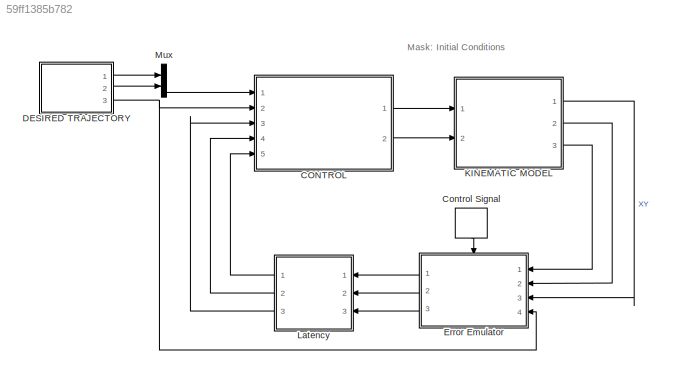
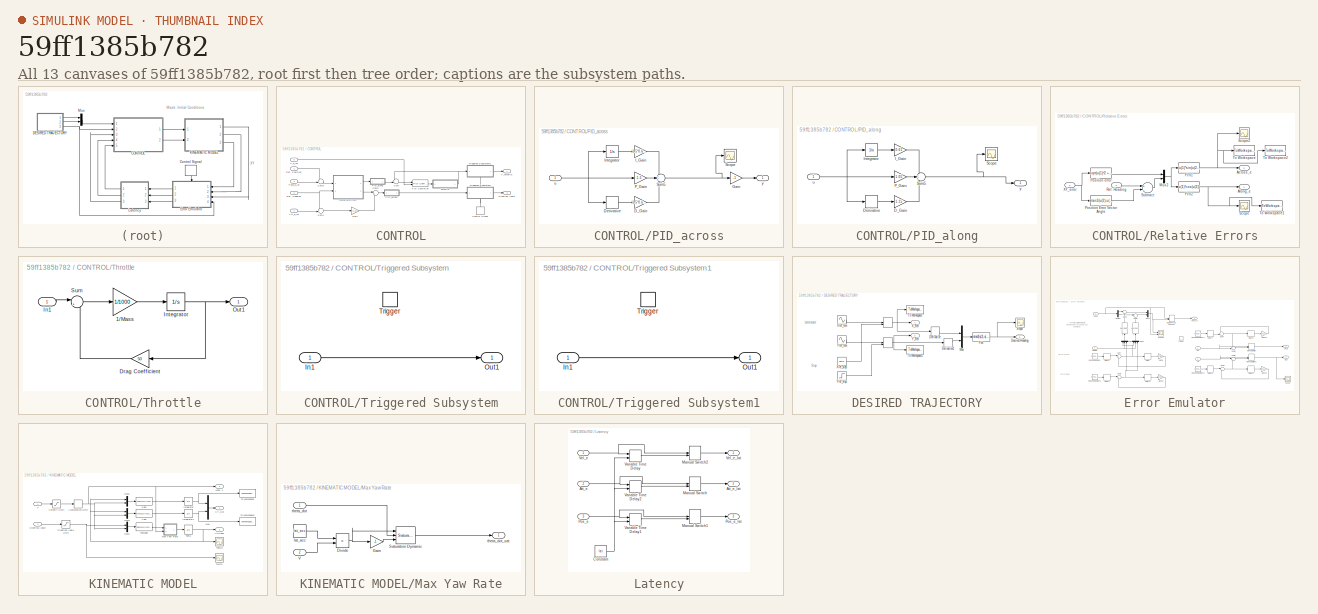
[diagram: thumbnail index - all 13 canvases of the model, root first then tree order]
MODEL slx_59ff1385b782
KIND model
CONFIG AbsTol = auto
CONFIG EnableMultiTasking = off
CONFIG FixedStep = 0.005
CONFIG MaxStep = auto
CONFIG MinStep = auto
CONFIG RelTol = 1e-3
CONFIG SampleTimeConstraint = Unconstrained
CONFIG Solver = FixedStepAuto
CONFIG SolverName = FixedStepAuto
CONFIG StartTime = 0.0
CONFIG StopFcn = Plots\n
CONFIG StopTime = t
BLOCK [SubSystem] CONTROL
  Ports = [5, 2]
  RequestExecContextInheritance = off
  Variant = off
BLOCK [Inport] CONTROL/Att_e_lat
  IconDisplay = Port number
  Port = 4
BLOCK [DiscretePulseGenerator] CONTROL/Control Signal
  Period = deltat
  Ports = [0, 1]
  PulseType = Time based
  PulseWidth = 50
BLOCK [Gain] CONTROL/Gain
  Gain = 0.01
  OutDataTypeStr = Inherit: Inherit via internal rule
  ParamDataTypeStr = Inherit: Inherit via internal rule
  SaturateOnIntegerOverflow = off
BLOCK [Reference] CONTROL/PID Controller  REF=simulink/Continuous/PID Controller
  Ports = [2, 1]
  SourceBlock = simulink/Continuous/PID Controller
  SourceType = PID 1dof
BLOCK [SubSystem] CONTROL/PID_across
  Ports = [1, 1]
  RequestExecContextInheritance = off
  Variant = off
BLOCK [Gain] CONTROL/PID_across/D_Gain
  Gain = 1.5*0.6*3/8
  OutDataTypeStr = Inherit: Inherit via internal rule
  ParamDataTypeStr = Inherit: Inherit via internal rule
  SaturateOnIntegerOverflow = off
BLOCK [Derivative] CONTROL/PID_across/Derivative
BLOCK [Gain] CONTROL/PID_across/Gain
  Gain = -1
  OutDataTypeStr = Inherit: Inherit via internal rule
  ParamDataTypeStr = Inherit: Inherit via internal rule
  SaturateOnIntegerOverflow = off
BLOCK [Gain] CONTROL/PID_across/I_Gain
  Gain = 1.5*0.6*2/1.9
  OutDataTypeStr = Inherit: Inherit via internal rule
  ParamDataTypeStr = Inherit: Inherit via internal rule
  SaturateOnIntegerOverflow = off
BLOCK [Integrator] CONTROL/PID_across/Integrator
  Ports = [1, 1]
  WrapState = on
  WrappedStateLowerValue = -pi/10
  WrappedStateUpperValue = pi/10
BLOCK [Gain] CONTROL/PID_across/P_Gain
  Gain = 1.5
  OutDataTypeStr = Inherit: Inherit via internal rule
  ParamDataTypeStr = Inherit: Inherit via internal rule
  SaturateOnIntegerOverflow = off
BLOCK [Scope] CONTROL/PID_across/Scope
  NumInputPorts = 1
  Ports = [1]
  ScopeSpecificationString = Simulink.scopes.TimeScopeBlockCfg('CurrentConfiguration', extmgr.ConfigurationSet(extmgr.Configuration('Core','General UI',true),extmgr.Configuration('Core','Source UI',true),extmgr.Configuration('Sources','WiredSimulink',true,'DataLoggingVariableName','ScopeData4'),extmgr.Configuration('Visuals','Time Domain',true,'SerializedDisplays',{struct('MinYLimReal','-82.08781','MaxYLimReal','74.78118','YL...<+1413ch>
BLOCK [Sum] CONTROL/PID_across/Sum5
  IconShape = round
  InputSameDT = off
  Inputs = +++
  OutDataTypeStr = Inherit: Inherit via internal rule
  Ports = [3, 1]
  SaturateOnIntegerOverflow = off
BLOCK [Inport] CONTROL/PID_across/u
  IconDisplay = Port number
BLOCK [Outport] CONTROL/PID_across/y
  IconDisplay = Port number
BLOCK [SubSystem] CONTROL/PID_along
  Ports = [1, 1]
  RequestExecContextInheritance = off
  Variant = off
BLOCK [Gain] CONTROL/PID_along/D_Gain
  Gain = 1.15
  OutDataTypeStr = Inherit: Inherit via internal rule
  ParamDataTypeStr = Inherit: Inherit via internal rule
  SaturateOnIntegerOverflow = off
BLOCK [Derivative] CONTROL/PID_along/Derivative
BLOCK [Gain] CONTROL/PID_along/I_Gain
  Gain = 0.01
  OutDataTypeStr = Inherit: Inherit via internal rule
  ParamDataTypeStr = Inherit: Inherit via internal rule
  SaturateOnIntegerOverflow = off
BLOCK [Integrator] CONTROL/PID_along/Integrator
  Ports = [1, 1]
BLOCK [Gain] CONTROL/PID_along/P_Gain
  Gain = 1.05
  OutDataTypeStr = Inherit: Inherit via internal rule
  ParamDataTypeStr = Inherit: Inherit via internal rule
  SaturateOnIntegerOverflow = off
BLOCK [Scope] CONTROL/PID_along/Scope
  NumInputPorts = 1
  Ports = [1]
  ScopeSpecificationString = Simulink.scopes.TimeScopeBlockCfg('CurrentConfiguration', extmgr.ConfigurationSet(extmgr.Configuration('Core','General UI',true),extmgr.Configuration('Core','Source UI',true),extmgr.Configuration('Sources','WiredSimulink',true,'DataLoggingVariableName','ScopeData4'),extmgr.Configuration('Visuals','Time Domain',true,'SerializedDisplays',{struct('MinYLimReal','-58.12','MaxYLimReal','523.05327','YLab...<+1386ch>
BLOCK [Sum] CONTROL/PID_along/Sum5
  IconShape = round
  InputSameDT = off
  Inputs = +++
  OutDataTypeStr = Inherit: Inherit via internal rule
  Ports = [3, 1]
  SaturateOnIntegerOverflow = off
BLOCK [Inport] CONTROL/PID_along/u
  IconDisplay = Port number
BLOCK [Outport] CONTROL/PID_along/y
  IconDisplay = Port number
BLOCK [Inport] CONTROL/Pose_e_lat
  IconDisplay = Port number
  Port = 3
BLOCK [Inport] CONTROL/Ref. Heading
  IconDisplay = Port number
  Port = 2
BLOCK [Inport] CONTROL/Ref. Position
  IconDisplay = Port number
BLOCK [SubSystem] CONTROL/Relative Errors
  Ports = [2, 2]
  RequestExecContextInheritance = off
  Variant = off
BLOCK [Outport] CONTROL/Relative Errors/Across_e
  IconDisplay = Port number
  Port = 2
BLOCK [Outport] CONTROL/Relative Errors/Along_e
  IconDisplay = Port number
BLOCK [Fcn] CONTROL/Relative Errors/Fcn1
  Expr = (u(1)*sin(u(2)))
BLOCK [Fcn] CONTROL/Relative Errors/Fcn2
  Expr = u(1)*cos(u(2))
BLOCK [Mux] CONTROL/Relative Errors/Mux2
  DisplayOption = bar
  Inputs = 2
  Ports = [2, 1]
BLOCK [Fcn] CONTROL/Relative Errors/Position Error Vector Angle
  Expr = atan2(u(2),u(1))
BLOCK [Fcn] CONTROL/Relative Errors/Position error
  Expr = sqrt(u(1)^2 + u(2)^2)
BLOCK [Inport] CONTROL/Relative Errors/Ref. Heading
  IconDisplay = Port number
  Port = 2
BLOCK [Scope] CONTROL/Relative Errors/Scope
  NumInputPorts = 1
  Ports = [1]
  ScopeSpecificationString = Simulink.scopes.TimeScopeBlockCfg('CurrentConfiguration', extmgr.ConfigurationSet(extmgr.Configuration('Core','General UI',true),extmgr.Configuration('Core','Source UI',true),extmgr.Configuration('Sources','WiredSimulink',true,'DataLoggingVariableName','ScopeData1'),extmgr.Configuration('Visuals','Time Domain',true,'SerializedDisplays',{struct('MinYLimReal','-10.28283','MaxYLimReal','8.76209','YLa...<+1415ch>
BLOCK [Scope] CONTROL/Relative Errors/Scope2
  NumInputPorts = 1
  Ports = [1]
  ScopeSpecificationString = Simulink.scopes.TimeScopeBlockCfg('CurrentConfiguration', extmgr.ConfigurationSet(extmgr.Configuration('Core','General UI',true),extmgr.Configuration('Core','Source UI',true),extmgr.Configuration('Sources','WiredSimulink',true,'DataLoggingVariableName','ScopeData3'),extmgr.Configuration('Visuals','Time Domain',true,'SerializedDisplays',{struct('MinYLimReal','-8.9172','MaxYLimReal','7.80895','YLabe...<+1432ch>
BLOCK [Sum] CONTROL/Relative Errors/Subtract
  InputSameDT = off
  Inputs = +-
  OutDataTypeStr = Inherit: Inherit via internal rule
  Ports = [2, 1]
  SaturateOnIntegerOverflow = off
BLOCK [ToWorkspace] CONTROL/Relative Errors/To Workspace
  FixptAsFi = on
  MaxDataPoints = inf
  Ports = [1]
  SampleTime = -1
  Save2DSignal = 3-D array (concatenate along third dimension)
  SaveFormat = Timeseries
  VariableName = across
BLOCK [ToWorkspace] CONTROL/Relative Errors/To Workspace1
  FixptAsFi = on
  MaxDataPoints = inf
  Ports = [1]
  SampleTime = -1
  Save2DSignal = 2-D array (concatenate along first dimension)
  VariableName = alongrms
BLOCK [ToWorkspace] CONTROL/Relative Errors/To Workspace2
  FixptAsFi = on
  MaxDataPoints = inf
  Ports = [1]
  SampleTime = -1
  Save2DSignal = 2-D array (concatenate along first dimension)
  VariableName = acrossrms
BLOCK [Inport] CONTROL/Relative Errors/XY_error
  IconDisplay = Port number
BLOCK [Outport] CONTROL/Steering Angle
  IconDisplay = Port number
  Port = 2
BLOCK [Sum] CONTROL/Sum
  IconShape = round
  InputSameDT = off
  Inputs = -+|
  OutDataTypeStr = Inherit: Inherit via internal rule
  Ports = [2, 1]
  SaturateOnIntegerOverflow = off
BLOCK [Sum] CONTROL/Sum1
  IconShape = round
  InputSameDT = off
  Inputs = +-|
  OutDataTypeStr = Inherit: Inherit via internal rule
  Ports = [2, 1]
  SaturateOnIntegerOverflow = off
BLOCK [Sum] CONTROL/Sum2
  IconShape = round
  InputSameDT = off
  Inputs = |++
  OutDataTypeStr = Inherit: Inherit via internal rule
  Ports = [2, 1]
  SaturateOnIntegerOverflow = off
BLOCK [Sum] CONTROL/Sum3
  IconShape = round
  InputSameDT = off
  Inputs = +-|
  OutDataTypeStr = Inherit: Inherit via internal rule
  Ports = [2, 1]
  SaturateOnIntegerOverflow = off
BLOCK [SubSystem] CONTROL/Throttle
  Ports = [1, 1]
  RequestExecContextInheritance = off
  Variant = off
BLOCK [Gain] CONTROL/Throttle/1//Mass
  Gain = 1/1000
  OutDataTypeStr = Inherit: Inherit via internal rule
  ParamDataTypeStr = Inherit: Inherit via internal rule
  SaturateOnIntegerOverflow = off
BLOCK [Gain] CONTROL/Throttle/Drag Coefficient
  Gain = 50
  OutDataTypeStr = Inherit: Inherit via internal rule
  ParamDataTypeStr = Inherit: Inherit via internal rule
  SaturateOnIntegerOverflow = off
BLOCK [Inport] CONTROL/Throttle/In1
  IconDisplay = Port number
BLOCK [Integrator] CONTROL/Throttle/Integrator
  InitialCondition = 5
  Ports = [1, 1]
BLOCK [Outport] CONTROL/Throttle/Out1
  IconDisplay = Port number
BLOCK [Sum] CONTROL/Throttle/Sum
  IconShape = round
  InputSameDT = off
  Inputs = |+-
  OutDataTypeStr = Inherit: Inherit via internal rule
  Ports = [2, 1]
  SaturateOnIntegerOverflow = off
BLOCK [SubSystem] CONTROL/Triggered Subsystem
  Ports = [1, 1, 0, 1]
  RequestExecContextInheritance = off
  TreatAsAtomicUnit = on
  Variant = off
BLOCK [Inport] CONTROL/Triggered Subsystem/In1
  IconDisplay = Port number
BLOCK [Outport] CONTROL/Triggered Subsystem/Out1
  IconDisplay = Port number
BLOCK [TriggerPort] CONTROL/Triggered Subsystem/Trigger
  Ports = []
  StatesWhenEnabling = held
  VariantControl = Variant
BLOCK [SubSystem] CONTROL/Triggered Subsystem1
  Ports = [1, 1, 0, 1]
  RequestExecContextInheritance = off
  TreatAsAtomicUnit = on
  Variant = off
BLOCK [Inport] CONTROL/Triggered Subsystem1/In1
  IconDisplay = Port number
BLOCK [Outport] CONTROL/Triggered Subsystem1/Out1
  IconDisplay = Port number
BLOCK [TriggerPort] CONTROL/Triggered Subsystem1/Trigger
  Ports = []
  StatesWhenEnabling = held
  VariantControl = Variant
BLOCK [Outport] CONTROL/V_Throttle
  IconDisplay = Port number
BLOCK [Inport] CONTROL/V_e_lat
  IconDisplay = Port number
  Port = 5
BLOCK [DiscretePulseGenerator] Control Signal
  Period = deltat
  Ports = [0, 1]
  PulseType = Time based
  PulseWidth = 50
BLOCK [SubSystem] DESIRED TRAJECTORY
  Ports = [0, 3]
  RequestExecContextInheritance = off
  Variant = off
BLOCK [ManualSwitch] DESIRED TRAJECTORY/ 
BLOCK [ManualSwitch] DESIRED TRAJECTORY/  
BLOCK [Derivative] DESIRED TRAJECTORY/Derivative
BLOCK [Derivative] DESIRED TRAJECTORY/Derivative1
BLOCK [Outport] DESIRED TRAJECTORY/Desired Heading
  IconDisplay = Port number
  Port = 3
BLOCK [Fcn] DESIRED TRAJECTORY/Fcn
  Expr = atan2(u(2),u(1))
BLOCK [Mux] DESIRED TRAJECTORY/Mux
  DisplayOption = bar
  Inputs = 2
  Ports = [2, 1]
BLOCK [Scope] DESIRED TRAJECTORY/Scope
  NumInputPorts = 1
  Ports = [1]
  ScopeSpecificationString = Simulink.scopes.TimeScopeBlockCfg('CurrentConfiguration', extmgr.ConfigurationSet(extmgr.Configuration('Core','General UI',true),extmgr.Configuration('Core','Source UI',true),extmgr.Configuration('Sources','WiredSimulink',true,'DataLoggingVariableName','ScopeData1'),extmgr.Configuration('Visuals','Time Domain',true,'SerializedDisplays',{struct('MinYLimReal','0.45014','MaxYLimReal','0.79246','YLabe...<+1433ch>
BLOCK [ToWorkspace] DESIRED TRAJECTORY/To Workspace
  FixptAsFi = on
  MaxDataPoints = inf
  Ports = [1]
  SampleTime = -1
  Save2DSignal = 3-D array (concatenate along third dimension)
  SaveFormat = Timeseries
  VariableName = x_ref
BLOCK [ToWorkspace] DESIRED TRAJECTORY/To Workspace1
  FixptAsFi = on
  MaxDataPoints = inf
  Ports = [1]
  SampleTime = -1
  Save2DSignal = 3-D array (concatenate along third dimension)
  SaveFormat = Timeseries
  VariableName = y_ref
BLOCK [Outport] DESIRED TRAJECTORY/X_Ref
  IconDisplay = Port number
BLOCK [Sin] DESIRED TRAJECTORY/Xref_lem
  Amplitude = n*A
  Frequency = 2*pi/t
  Ports = [0, 1]
  SampleTime = 0
BLOCK [Reference] DESIRED TRAJECTORY/Xref_step  REF=simulink/Sources/Ramp
  Ports = [0, 1]
  SourceBlock = simulink/Sources/Ramp
  SourceType = Ramp
BLOCK [Outport] DESIRED TRAJECTORY/Y_Ref
  IconDisplay = Port number
  Port = 2
BLOCK [Sin] DESIRED TRAJECTORY/Yref_lem
  Amplitude = A
  Frequency = 4*pi/t
  Ports = [0, 1]
  SampleTime = 0
BLOCK [Step] DESIRED TRAJECTORY/Yref_step
  After = 5
  SampleTime = 0
  Time = 50
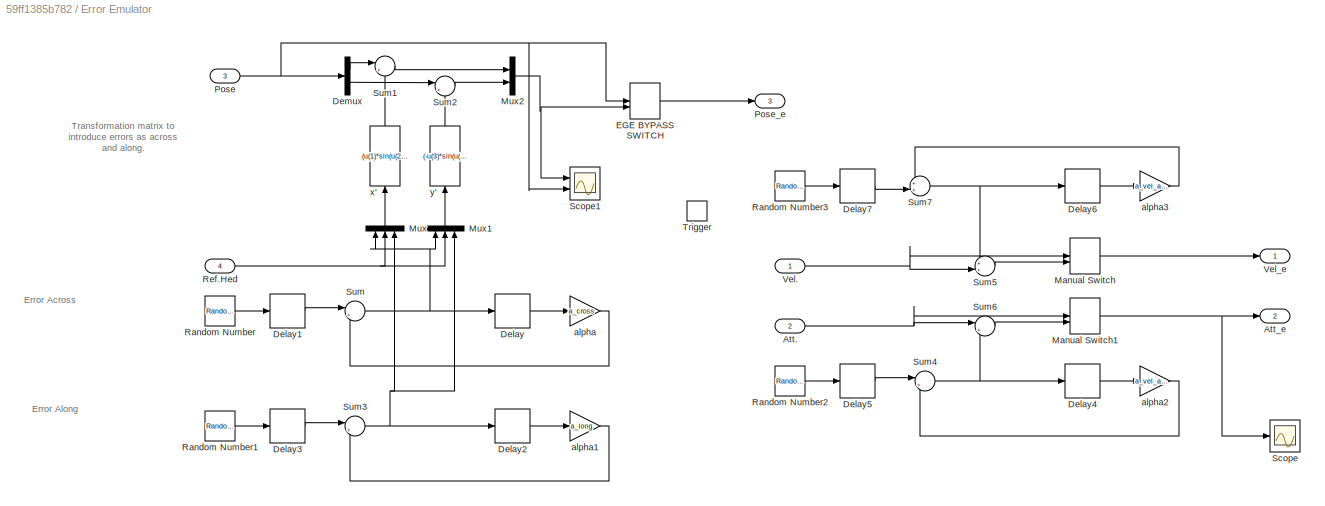
BLOCK [SubSystem] Error Emulator
  Ports = [4, 3, 0, 1]
  RequestExecContextInheritance = off
  Variant = off
BLOCK [Inport] Error Emulator/Att.
  IconDisplay = Port number
  Port = 2
BLOCK [Outport] Error Emulator/Att_e
  IconDisplay = Port number
  Port = 2
BLOCK [Delay] Error Emulator/Delay
  DelayLength = 1
  InitialCondition = 0
  InputPortMap = u0
  Ports = [1, 1]
BLOCK [Delay] Error Emulator/Delay1
  DelayLength = 1
  InitialCondition = 0
  InputPortMap = u0
  Ports = [1, 1]
BLOCK [Delay] Error Emulator/Delay2
  DelayLength = 1
  InitialCondition = 0
  InputPortMap = u0
  Ports = [1, 1]
BLOCK [Delay] Error Emulator/Delay3
  DelayLength = 1
  InitialCondition = 0
  InputPortMap = u0
  Ports = [1, 1]
BLOCK [Delay] Error Emulator/Delay4
  DelayLength = 1
  InitialCondition = 0
  InputPortMap = u0
  Ports = [1, 1]
BLOCK [Delay] Error Emulator/Delay5
  DelayLength = 1
  InitialCondition = 0
  InputPortMap = u0
  Ports = [1, 1]
BLOCK [Delay] Error Emulator/Delay6
  DelayLength = 1
  InitialCondition = 0
  InputPortMap = u0
  Ports = [1, 1]
BLOCK [Delay] Error Emulator/Delay7
  DelayLength = 1
  InitialCondition = 0
  InputPortMap = u0
  Ports = [1, 1]
BLOCK [Demux] Error Emulator/Demux
  DisplayOption = bar
  Outputs = 2
  Ports = [1, 2]
BLOCK [ManualSwitch] Error Emulator/EGE BYPASS SWITCH
  CurrentSetting = 0
BLOCK [ManualSwitch] Error Emulator/Manual Switch
  CurrentSetting = 0
BLOCK [ManualSwitch] Error Emulator/Manual Switch1
  CurrentSetting = 0
BLOCK [Mux] Error Emulator/Mux
  DisplayOption = bar
  Inputs = 3
  Ports = [3, 1]
BLOCK [Mux] Error Emulator/Mux1
  DisplayOption = bar
  Inputs = 3
  Ports = [3, 1]
BLOCK [Mux] Error Emulator/Mux2
  DisplayOption = bar
  Inputs = 2
  Ports = [2, 1]
BLOCK [Inport] Error Emulator/Pose
  IconDisplay = Port number
  Port = 3
BLOCK [Outport] Error Emulator/Pose_e
  IconDisplay = Port number
  Port = 3
BLOCK [RandomNumber] Error Emulator/Random Number
  Variance = s_cross^2
BLOCK [RandomNumber] Error Emulator/Random Number1
  Variance = s_long^2
BLOCK [RandomNumber] Error Emulator/Random Number2
  Variance = s_att^2
BLOCK [RandomNumber] Error Emulator/Random Number3
  Variance = s_vel^2
BLOCK [Inport] Error Emulator/Ref.Hed 
  IconDisplay = Port number
  Port = 4
BLOCK [Scope] Error Emulator/Scope
  NumInputPorts = 1
  Ports = [1]
  ScopeSpecificationString = Simulink.scopes.TimeScopeBlockCfg('CurrentConfiguration', extmgr.ConfigurationSet(extmgr.Configuration('Core','General UI',true),extmgr.Configuration('Core','Source UI',true),extmgr.Configuration('Sources','WiredSimulink',true,'DataLoggingVariableName','ScopeData1'),extmgr.Configuration('Visuals','Time Domain',true,'SerializedDisplays',{struct('MinYLimReal','-34.29249','MaxYLimReal','-22.55754','Y...<+1400ch>
BLOCK [Scope] Error Emulator/Scope1
  NumInputPorts = 2
  Ports = [2]
  ScopeSpecificationString = Simulink.scopes.TimeScopeBlockCfg('CurrentConfiguration', extmgr.ConfigurationSet(extmgr.Configuration('Core','General UI',true),extmgr.Configuration('Core','Source UI',true),extmgr.Configuration('Sources','WiredSimulink',true,'DataLoggingVariableName','ScopeData3'),extmgr.Configuration('Visuals','Time Domain',true,'SerializedDisplays',{struct('MinYLimReal','-803.86448','MaxYLimReal','1744.12132',...<+1477ch>
BLOCK [Sum] Error Emulator/Sum
  IconShape = round
  InputSameDT = off
  Inputs = |++
  OutDataTypeStr = Inherit: Inherit via internal rule
  Ports = [2, 1]
  SaturateOnIntegerOverflow = off
BLOCK [Sum] Error Emulator/Sum1
  IconShape = round
  InputSameDT = off
  Inputs = |+-
  OutDataTypeStr = Inherit: Inherit via internal rule
  Ports = [2, 1]
  SaturateOnIntegerOverflow = off
BLOCK [Sum] Error Emulator/Sum2
  IconShape = round
  InputSameDT = off
  Inputs = |++
  OutDataTypeStr = Inherit: Inherit via internal rule
  Ports = [2, 1]
  SaturateOnIntegerOverflow = off
BLOCK [Sum] Error Emulator/Sum3
  IconShape = round
  InputSameDT = off
  Inputs = |++
  OutDataTypeStr = Inherit: Inherit via internal rule
  Ports = [2, 1]
  SaturateOnIntegerOverflow = off
BLOCK [Sum] Error Emulator/Sum4
  IconShape = round
  InputSameDT = off
  Inputs = |++
  OutDataTypeStr = Inherit: Inherit via internal rule
  Ports = [2, 1]
  SaturateOnIntegerOverflow = off
BLOCK [Sum] Error Emulator/Sum5
  IconShape = round
  InputSameDT = off
  Inputs = ++|
  OutDataTypeStr = Inherit: Inherit via internal rule
  Ports = [2, 1]
  SaturateOnIntegerOverflow = off
BLOCK [Sum] Error Emulator/Sum6
  IconShape = round
  InputSameDT = off
  Inputs = |++
  OutDataTypeStr = Inherit: Inherit via internal rule
  Ports = [2, 1]
  SaturateOnIntegerOverflow = off
BLOCK [Sum] Error Emulator/Sum7
  IconShape = round
  InputSameDT = off
  Inputs = ++|
  OutDataTypeStr = Inherit: Inherit via internal rule
  Ports = [2, 1]
  SaturateOnIntegerOverflow = off
BLOCK [TriggerPort] Error Emulator/Trigger
  PortDimensions = 1
  Ports = []
  StatesWhenEnabling = held
  VariantControl = Variant
BLOCK [Inport] Error Emulator/Vel.
  IconDisplay = Port number
BLOCK [Outport] Error Emulator/Vel_e
  IconDisplay = Port number
BLOCK [Gain] Error Emulator/alpha
  Gain = a_cross
  OutDataTypeStr = Inherit: Inherit via internal rule
  ParamDataTypeStr = Inherit: Inherit via internal rule
  SaturateOnIntegerOverflow = off
BLOCK [Gain] Error Emulator/alpha1
  Gain = a_long
  OutDataTypeStr = Inherit: Inherit via internal rule
  ParamDataTypeStr = Inherit: Inherit via internal rule
  SaturateOnIntegerOverflow = off
BLOCK [Gain] Error Emulator/alpha2
  Gain = a_vel_att
  OutDataTypeStr = Inherit: Inherit via internal rule
  ParamDataTypeStr = Inherit: Inherit via internal rule
  SaturateOnIntegerOverflow = off
BLOCK [Gain] Error Emulator/alpha3
  Gain = a_vel_att
  OutDataTypeStr = Inherit: Inherit via internal rule
  ParamDataTypeStr = Inherit: Inherit via internal rule
  SaturateOnIntegerOverflow = off
BLOCK [Fcn] Error Emulator/x'
  Expr = (u(1)*sin(u(2))+u(3)*cos(u(2)))
BLOCK [Fcn] Error Emulator/y'
  Expr = (-u(3)*sin(u(2))+u(1)*cos(u(2)))
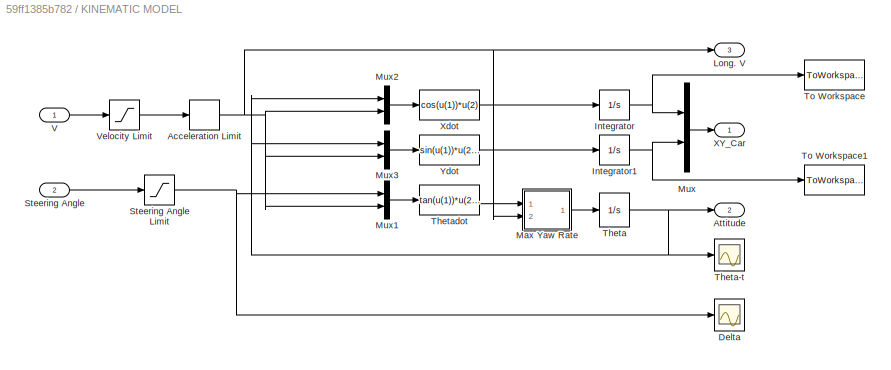
BLOCK [SubSystem] KINEMATIC MODEL
  Ports = [2, 3]
  RequestExecContextInheritance = off
  Variant = off
BLOCK [RateLimiter] KINEMATIC MODEL/Acceleration Limit
  FallingSlewLimit = -3
  RisingSlewLimit = 3
  SampleTimeMode = inherited
BLOCK [Outport] KINEMATIC MODEL/Attitude
  IconDisplay = Port number
  Port = 2
BLOCK [Scope] KINEMATIC MODEL/Delta
  NumInputPorts = 1
  Ports = [1]
  ScopeSpecificationString = Simulink.scopes.TimeScopeBlockCfg('CurrentConfiguration', extmgr.ConfigurationSet(extmgr.Configuration('Core','General UI',true),extmgr.Configuration('Core','Source UI',true),extmgr.Configuration('Sources','WiredSimulink',true,'DataLoggingVariableName','ScopeData3'),extmgr.Configuration('Visuals','Time Domain',true,'SerializedDisplays',{struct('MinYLimReal','-0.98175','MaxYLimReal','0.98175','YLab...<+1451ch>
BLOCK [Integrator] KINEMATIC MODEL/Integrator
  InitialCondition = x0
  Ports = [1, 1]
BLOCK [Integrator] KINEMATIC MODEL/Integrator1
  InitialCondition = y0
  Ports = [1, 1]
BLOCK [Outport] KINEMATIC MODEL/Long. V
  IconDisplay = Port number
  Port = 3
BLOCK [SubSystem] KINEMATIC MODEL/Max Yaw Rate
  Ports = [2, 1]
  RequestExecContextInheritance = off
  Variant = off
BLOCK [Product] KINEMATIC MODEL/Max Yaw Rate/Divide
  InputSameDT = off
  Inputs = */
  OutDataTypeStr = Inherit: Inherit via internal rule
  Ports = [2, 1]
  RndMeth = Floor
  SaturateOnIntegerOverflow = off
BLOCK [Gain] KINEMATIC MODEL/Max Yaw Rate/Gain
  Gain = -1
  OutDataTypeStr = Inherit: Inherit via internal rule
  ParamDataTypeStr = Inherit: Inherit via internal rule
  SaturateOnIntegerOverflow = off
BLOCK [Reference] KINEMATIC MODEL/Max Yaw Rate/Saturation Dynamic  REF=simulink/Discontinuities/Saturation
Dynamic
  Ports = [3, 1]
  SourceBlock = simulink/Discontinuities/Saturation\nDynamic
  SourceType = Saturation Dynamic
BLOCK [Inport] KINEMATIC MODEL/Max Yaw Rate/V
  IconDisplay = Port number
  Port = 2
BLOCK [Constant] KINEMATIC MODEL/Max Yaw Rate/lat_acc
  Value = lat_acc
BLOCK [Inport] KINEMATIC MODEL/Max Yaw Rate/theta_dot
  IconDisplay = Port number
BLOCK [Outport] KINEMATIC MODEL/Max Yaw Rate/theta_dot_sat
  IconDisplay = Port number
BLOCK [Mux] KINEMATIC MODEL/Mux
  DisplayOption = bar
  Inputs = 2
  Ports = [2, 1]
BLOCK [Mux] KINEMATIC MODEL/Mux1
  DisplayOption = bar
  Inputs = 2
  Ports = [2, 1]
BLOCK [Mux] KINEMATIC MODEL/Mux2
  DisplayOption = bar
  Inputs = 2
  Ports = [2, 1]
BLOCK [Mux] KINEMATIC MODEL/Mux3
  DisplayOption = bar
  Inputs = 2
  Ports = [2, 1]
BLOCK [Inport] KINEMATIC MODEL/Steering Angle
  IconDisplay = Port number
  Port = 2
BLOCK [Saturate] KINEMATIC MODEL/Steering Angle Limit
  InputPortMap = u0
  LowerLimit = -pi/4
  Ports = [1, 1]
  UpperLimit = pi/4
BLOCK [Integrator] KINEMATIC MODEL/Theta
  InitialCondition = ref
  Ports = [1, 1]
BLOCK [Scope] KINEMATIC MODEL/Theta-t
  NumInputPorts = 1
  Ports = [1]
  ScopeSpecificationString = Simulink.scopes.TimeScopeBlockCfg('CurrentConfiguration', extmgr.ConfigurationSet(extmgr.Configuration('Core','General UI',true),extmgr.Configuration('Core','Source UI',true),extmgr.Configuration('Sources','WiredSimulink',true,'DataLoggingVariableName','ScopeData6'),extmgr.Configuration('Visuals','Time Domain',true,'SerializedDisplays',{struct('MinYLimReal','-0.30194','MaxYLimReal','0.33125','YLab...<+1461ch>
BLOCK [Fcn] KINEMATIC MODEL/Thetadot
  Expr = tan(u(1))*u(2)/2
BLOCK [ToWorkspace] KINEMATIC MODEL/To Workspace
  FixptAsFi = on
  MaxDataPoints = inf
  Ports = [1]
  SampleTime = -1
  Save2DSignal = 3-D array (concatenate along third dimension)
  SaveFormat = Timeseries
  VariableName = x_car
BLOCK [ToWorkspace] KINEMATIC MODEL/To Workspace1
  FixptAsFi = on
  MaxDataPoints = inf
  Ports = [1]
  SampleTime = -1
  Save2DSignal = 3-D array (concatenate along third dimension)
  SaveFormat = Timeseries
  VariableName = y_car
BLOCK [Inport] KINEMATIC MODEL/V
  IconDisplay = Port number
BLOCK [Saturate] KINEMATIC MODEL/Velocity Limit
  InputPortMap = u0
  LowerLimit = 0
  Ports = [1, 1]
  UpperLimit = 25
BLOCK [Outport] KINEMATIC MODEL/XY_Car
  IconDisplay = Port number
BLOCK [Fcn] KINEMATIC MODEL/Xdot
  Expr = cos(u(1))*u(2)
BLOCK [Fcn] KINEMATIC MODEL/Ydot
  Expr = sin(u(1))*u(2)*1
BLOCK [SubSystem] Latency
  Ports = [3, 3]
  RequestExecContextInheritance = off
  Variant = off
BLOCK [Inport] Latency/Att_e
  IconDisplay = Port number
  Port = 2
BLOCK [Outport] Latency/Att_e_lat
  IconDisplay = Port number
  Port = 2
BLOCK [Constant] Latency/Constant
  Value = lat
BLOCK [ManualSwitch] Latency/Manual Switch
  CurrentSetting = 0
BLOCK [ManualSwitch] Latency/Manual Switch1
  CurrentSetting = 0
BLOCK [ManualSwitch] Latency/Manual Switch2
  CurrentSetting = 0
BLOCK [Inport] Latency/Pos_e
  IconDisplay = Port number
  Port = 3
BLOCK [Outport] Latency/Pos_e_lat
  IconDisplay = Port number
  Port = 3
BLOCK [VariableTransportDelay] Latency/Variable Time Delay
  MaximumDelay = 20
  Ports = [2, 1]
  ZeroDelay = on
BLOCK [VariableTransportDelay] Latency/Variable Time Delay1
  MaximumDelay = 20
  Ports = [2, 1]
  ZeroDelay = on
BLOCK [VariableTransportDelay] Latency/Variable Time Delay2
  MaximumDelay = 20
  Ports = [2, 1]
  ZeroDelay = on
BLOCK [Inport] Latency/Vel_e
  IconDisplay = Port number
BLOCK [Outport] Latency/Vel_e_lat
  IconDisplay = Port number
BLOCK [Mux] Mux
  DisplayOption = bar
  Inputs = 2
  Ports = [2, 1]
ANNOTATION (root): Mask: Initial Conditions
ANNOTATION DESIRED TRAJECTORY: Lemniscate
ANNOTATION DESIRED TRAJECTORY: Step
ANNOTATION Error Emulator: Error Across
ANNOTATION Error Emulator: Error Along
ANNOTATION Error Emulator: Transformation matrix to introduce errors as across and along.
LINE CONTROL/Att_e_lat:1 -> CONTROL/Sum1:2
NET CONTROL/Control Signal:1 -> CONTROL/Triggered Subsystem1:trigger, CONTROL/Triggered Subsystem:trigger
LINE CONTROL/Gain:1 -> CONTROL/Sum2:2
LINE CONTROL/PID Controller:1 -> CONTROL/Throttle:1
LINE CONTROL/PID_across/D_Gain:1 -> CONTROL/PID_across/Sum5:3
LINE CONTROL/PID_across/Derivative:1 -> CONTROL/PID_across/D_Gain:1
LINE CONTROL/PID_across/Gain:1 -> CONTROL/PID_across/y:1
LINE CONTROL/PID_across/I_Gain:1 -> CONTROL/PID_across/Sum5:1
LINE CONTROL/PID_across/Integrator:1 -> CONTROL/PID_across/I_Gain:1
LINE CONTROL/PID_across/P_Gain:1 -> CONTROL/PID_across/Sum5:2
NET CONTROL/PID_across/Sum5:1 -> CONTROL/PID_across/Gain:1, CONTROL/PID_across/Scope:1
NET CONTROL/PID_across/u:1 -> CONTROL/PID_across/Derivative:1, CONTROL/PID_across/Integrator:1, CONTROL/PID_across/P_Gain:1
LINE CONTROL/PID_across:1 -> CONTROL/Triggered Subsystem:1
LINE CONTROL/PID_along/D_Gain:1 -> CONTROL/PID_along/Sum5:3
LINE CONTROL/PID_along/Derivative:1 -> CONTROL/PID_along/D_Gain:1
LINE CONTROL/PID_along/I_Gain:1 -> CONTROL/PID_along/Sum5:1
LINE CONTROL/PID_along/Integrator:1 -> CONTROL/PID_along/I_Gain:1
LINE CONTROL/PID_along/P_Gain:1 -> CONTROL/PID_along/Sum5:2
NET CONTROL/PID_along/Sum5:1 -> CONTROL/PID_along/Scope:1, CONTROL/PID_along/y:1
NET CONTROL/PID_along/u:1 -> CONTROL/PID_along/Derivative:1, CONTROL/PID_along/Integrator:1, CONTROL/PID_along/P_Gain:1
LINE CONTROL/PID_along:1 -> CONTROL/Sum:2
LINE CONTROL/Pose_e_lat:1 -> CONTROL/Sum3:2
NET CONTROL/Ref. Heading:1 -> CONTROL/Relative Errors:2, CONTROL/Sum1:1
LINE CONTROL/Ref. Position:1 -> CONTROL/Sum3:1
NET CONTROL/Relative Errors/Fcn1:1 -> CONTROL/Relative Errors/Across_e:1, CONTROL/Relative Errors/Scope2:1, CONTROL/Relative Errors/To Workspace2:1, CONTROL/Relative Errors/To Workspace:1
NET CONTROL/Relative Errors/Fcn2:1 -> CONTROL/Relative Errors/Along_e:1, CONTROL/Relative Errors/Scope:1, CONTROL/Relative Errors/To Workspace1:1
NET CONTROL/Relative Errors/Mux2:1 -> CONTROL/Relative Errors/Fcn1:1, CONTROL/Relative Errors/Fcn2:1
LINE CONTROL/Relative Errors/Position Error Vector Angle:1 -> CONTROL/Relative Errors/Subtract:2
LINE CONTROL/Relative Errors/Position error:1 -> CONTROL/Relative Errors/Mux2:1
LINE CONTROL/Relative Errors/Ref. Heading:1 -> CONTROL/Relative Errors/Subtract:1
LINE CONTROL/Relative Errors/Subtract:1 -> CONTROL/Relative Errors/Mux2:2
NET CONTROL/Relative Errors/XY_error:1 -> CONTROL/Relative Errors/Position Error Vector Angle:1, CONTROL/Relative Errors/Position error:1
LINE CONTROL/Relative Errors:1 -> CONTROL/PID_along:1
LINE CONTROL/Relative Errors:2 -> CONTROL/Sum2:1
LINE CONTROL/Sum1:1 -> CONTROL/Gain:1
LINE CONTROL/Sum2:1 -> CONTROL/PID_across:1
LINE CONTROL/Sum3:1 -> CONTROL/Relative Errors:1
LINE CONTROL/Sum:1 -> CONTROL/PID Controller:1
LINE CONTROL/Throttle/1//Mass:1 -> CONTROL/Throttle/Integrator:1
LINE CONTROL/Throttle/Drag Coefficient:1 -> CONTROL/Throttle/Sum:2
LINE CONTROL/Throttle/In1:1 -> CONTROL/Throttle/Sum:1
NET CONTROL/Throttle/Integrator:1 -> CONTROL/Throttle/Drag Coefficient:1, CONTROL/Throttle/Out1:1
LINE CONTROL/Throttle/Sum:1 -> CONTROL/Throttle/1//Mass:1
NET CONTROL/Throttle:1 -> CONTROL/Sum:1, CONTROL/Triggered Subsystem1:1
LINE CONTROL/Triggered Subsystem/In1:1 -> CONTROL/Triggered Subsystem/Out1:1
LINE CONTROL/Triggered Subsystem1/In1:1 -> CONTROL/Triggered Subsystem1/Out1:1
LINE CONTROL/Triggered Subsystem1:1 -> CONTROL/V_Throttle:1
LINE CONTROL/Triggered Subsystem:1 -> CONTROL/Steering Angle:1
LINE CONTROL/V_e_lat:1 -> CONTROL/PID Controller:2
LINE CONTROL:1 -> KINEMATIC MODEL:1
LINE CONTROL:2 -> KINEMATIC MODEL:2
LINE Control Signal:1 -> Error Emulator:trigger
NET DESIRED TRAJECTORY/  :1 -> DESIRED TRAJECTORY/Derivative:1, DESIRED TRAJECTORY/To Workspace:1, DESIRED TRAJECTORY/X_Ref:1
NET DESIRED TRAJECTORY/ :1 -> DESIRED TRAJECTORY/Derivative1:1, DESIRED TRAJECTORY/To Workspace1:1, DESIRED TRAJECTORY/Y_Ref:1
LINE DESIRED TRAJECTORY/Derivative1:1 -> DESIRED TRAJECTORY/Mux:2
LINE DESIRED TRAJECTORY/Derivative:1 -> DESIRED TRAJECTORY/Mux:1
NET DESIRED TRAJECTORY/Fcn:1 -> DESIRED TRAJECTORY/Desired Heading:1, DESIRED TRAJECTORY/Scope:1
LINE DESIRED TRAJECTORY/Mux:1 -> DESIRED TRAJECTORY/Fcn:1
LINE DESIRED TRAJECTORY/Xref_lem:1 -> DESIRED TRAJECTORY/  :1
LINE DESIRED TRAJECTORY/Xref_step:1 -> DESIRED TRAJECTORY/  :2
LINE DESIRED TRAJECTORY/Yref_lem:1 -> DESIRED TRAJECTORY/ :1
LINE DESIRED TRAJECTORY/Yref_step:1 -> DESIRED TRAJECTORY/ :2
LINE DESIRED TRAJECTORY:1 -> Mux:1
LINE DESIRED TRAJECTORY:2 -> Mux:2
NET DESIRED TRAJECTORY:3 -> CONTROL:2, Error Emulator:4
NET Error Emulator/Att.:1 -> Error Emulator/Manual Switch1:1, Error Emulator/Sum6:1
LINE Error Emulator/Delay1:1 -> Error Emulator/Sum:1
LINE Error Emulator/Delay2:1 -> Error Emulator/alpha1:1
LINE Error Emulator/Delay3:1 -> Error Emulator/Sum3:1
LINE Error Emulator/Delay4:1 -> Error Emulator/alpha2:1
LINE Error Emulator/Delay5:1 -> Error Emulator/Sum4:1
LINE Error Emulator/Delay6:1 -> Error Emulator/alpha3:1
LINE Error Emulator/Delay7:1 -> Error Emulator/Sum7:2
LINE Error Emulator/Delay:1 -> Error Emulator/alpha:1
LINE Error Emulator/Demux:1 -> Error Emulator/Sum1:1
LINE Error Emulator/Demux:2 -> Error Emulator/Sum2:1
LINE Error Emulator/EGE BYPASS SWITCH:1 -> Error Emulator/Pose_e:1
NET Error Emulator/Manual Switch1:1 -> Error Emulator/Att_e:1, Error Emulator/Scope:1
LINE Error Emulator/Manual Switch:1 -> Error Emulator/Vel_e:1
LINE Error Emulator/Mux1:1 -> Error Emulator/y':1
NET Error Emulator/Mux2:1 -> Error Emulator/EGE BYPASS SWITCH:2, Error Emulator/Scope1:1
LINE Error Emulator/Mux:1 -> Error Emulator/x':1
NET Error Emulator/Pose:1 -> Error Emulator/Demux:1, Error Emulator/EGE BYPASS SWITCH:1, Error Emulator/Scope1:2
LINE Error Emulator/Random Number1:1 -> Error Emulator/Delay3:1
LINE Error Emulator/Random Number2:1 -> Error Emulator/Delay5:1
LINE Error Emulator/Random Number3:1 -> Error Emulator/Delay7:1
LINE Error Emulator/Random Number:1 -> Error Emulator/Delay1:1
NET Error Emulator/Ref.Hed :1 -> Error Emulator/Mux1:2, Error Emulator/Mux:2
LINE Error Emulator/Sum1:1 -> Error Emulator/Mux2:1
LINE Error Emulator/Sum2:1 -> Error Emulator/Mux2:2
NET Error Emulator/Sum3:1 -> Error Emulator/Delay2:1, Error Emulator/Mux1:3, Error Emulator/Mux:3
NET Error Emulator/Sum4:1 -> Error Emulator/Delay4:1, Error Emulator/Sum6:2
LINE Error Emulator/Sum5:1 -> Error Emulator/Manual Switch:2
LINE Error Emulator/Sum6:1 -> Error Emulator/Manual Switch1:2
NET Error Emulator/Sum7:1 -> Error Emulator/Delay6:1, Error Emulator/Sum5:1
NET Error Emulator/Sum:1 -> Error Emulator/Delay:1, Error Emulator/Mux1:1, Error Emulator/Mux:1
NET Error Emulator/Vel.:1 -> Error Emulator/Manual Switch:1, Error Emulator/Sum5:2
LINE Error Emulator/alpha1:1 -> Error Emulator/Sum3:2
LINE Error Emulator/alpha2:1 -> Error Emulator/Sum4:2
LINE Error Emulator/alpha3:1 -> Error Emulator/Sum7:1
LINE Error Emulator/alpha:1 -> Error Emulator/Sum:2
LINE Error Emulator/x':1 -> Error Emulator/Sum1:2
LINE Error Emulator/y':1 -> Error Emulator/Sum2:2
LINE Error Emulator:1 -> Latency:1
LINE Error Emulator:2 -> Latency:2
LINE Error Emulator:3 -> Latency:3
NET KINEMATIC MODEL/Acceleration Limit:1 -> KINEMATIC MODEL/Long. V:1, KINEMATIC MODEL/Max Yaw Rate:2, KINEMATIC MODEL/Mux1:2, KINEMATIC MODEL/Mux2:2, KINEMATIC MODEL/Mux3:2
NET KINEMATIC MODEL/Integrator1:1 -> KINEMATIC MODEL/Mux:2, KINEMATIC MODEL/To Workspace1:1
NET KINEMATIC MODEL/Integrator:1 -> KINEMATIC MODEL/Mux:1, KINEMATIC MODEL/To Workspace:1
NET KINEMATIC MODEL/Max Yaw Rate/Divide:1 -> KINEMATIC MODEL/Max Yaw Rate/Gain:1, KINEMATIC MODEL/Max Yaw Rate/Saturation Dynamic:1
LINE KINEMATIC MODEL/Max Yaw Rate/Gain:1 -> KINEMATIC MODEL/Max Yaw Rate/Saturation Dynamic:3
LINE KINEMATIC MODEL/Max Yaw Rate/Saturation Dynamic:1 -> KINEMATIC MODEL/Max Yaw Rate/theta_dot_sat:1
LINE KINEMATIC MODEL/Max Yaw Rate/V:1 -> KINEMATIC MODEL/Max Yaw Rate/Divide:2
LINE KINEMATIC MODEL/Max Yaw Rate/lat_acc:1 -> KINEMATIC MODEL/Max Yaw Rate/Divide:1
LINE KINEMATIC MODEL/Max Yaw Rate/theta_dot:1 -> KINEMATIC MODEL/Max Yaw Rate/Saturation Dynamic:2
LINE KINEMATIC MODEL/Max Yaw Rate:1 -> KINEMATIC MODEL/Theta:1
LINE KINEMATIC MODEL/Mux1:1 -> KINEMATIC MODEL/Thetadot:1
LINE KINEMATIC MODEL/Mux2:1 -> KINEMATIC MODEL/Xdot:1
LINE KINEMATIC MODEL/Mux3:1 -> KINEMATIC MODEL/Ydot:1
LINE KINEMATIC MODEL/Mux:1 -> KINEMATIC MODEL/XY_Car:1
NET KINEMATIC MODEL/Steering Angle Limit:1 -> KINEMATIC MODEL/Delta:1, KINEMATIC MODEL/Mux1:1
LINE KINEMATIC MODEL/Steering Angle:1 -> KINEMATIC MODEL/Steering Angle Limit:1
NET KINEMATIC MODEL/Theta:1 -> KINEMATIC MODEL/Attitude:1, KINEMATIC MODEL/Mux2:1, KINEMATIC MODEL/Mux3:1, KINEMATIC MODEL/Theta-t:1
LINE KINEMATIC MODEL/Thetadot:1 -> KINEMATIC MODEL/Max Yaw Rate:1
LINE KINEMATIC MODEL/V:1 -> KINEMATIC MODEL/Velocity Limit:1
LINE KINEMATIC MODEL/Velocity Limit:1 -> KINEMATIC MODEL/Acceleration Limit:1
LINE KINEMATIC MODEL/Xdot:1 -> KINEMATIC MODEL/Integrator:1
LINE KINEMATIC MODEL/Ydot:1 -> KINEMATIC MODEL/Integrator1:1
LINE KINEMATIC MODEL:1 -> Error Emulator:3
LINE KINEMATIC MODEL:2 -> Error Emulator:2
LINE KINEMATIC MODEL:3 -> Error Emulator:1
NET Latency/Att_e:1 -> Latency/Manual Switch:1, Latency/Variable Time Delay2:1
NET Latency/Constant:1 -> Latency/Variable Time Delay1:2, Latency/Variable Time Delay2:2, Latency/Variable Time Delay:2
LINE Latency/Manual Switch1:1 -> Latency/Pos_e_lat:1
LINE Latency/Manual Switch2:1 -> Latency/Vel_e_lat:1
LINE Latency/Manual Switch:1 -> Latency/Att_e_lat:1
NET Latency/Pos_e:1 -> Latency/Manual Switch1:1, Latency/Variable Time Delay1:1
LINE Latency/Variable Time Delay1:1 -> Latency/Manual Switch1:2
LINE Latency/Variable Time Delay2:1 -> Latency/Manual Switch:2
LINE Latency/Variable Time Delay:1 -> Latency/Manual Switch2:2
NET Latency/Vel_e:1 -> Latency/Manual Switch2:1, Latency/Variable Time Delay:1
LINE Latency:1 -> CONTROL:5
LINE Latency:2 -> CONTROL:4
LINE Latency:3 -> CONTROL:3
LINE Mux:1 -> CONTROL:1
note: NET lines group one-source signal fan-out (src -> all destinations, sorted); 1:1 wires keep LINE
